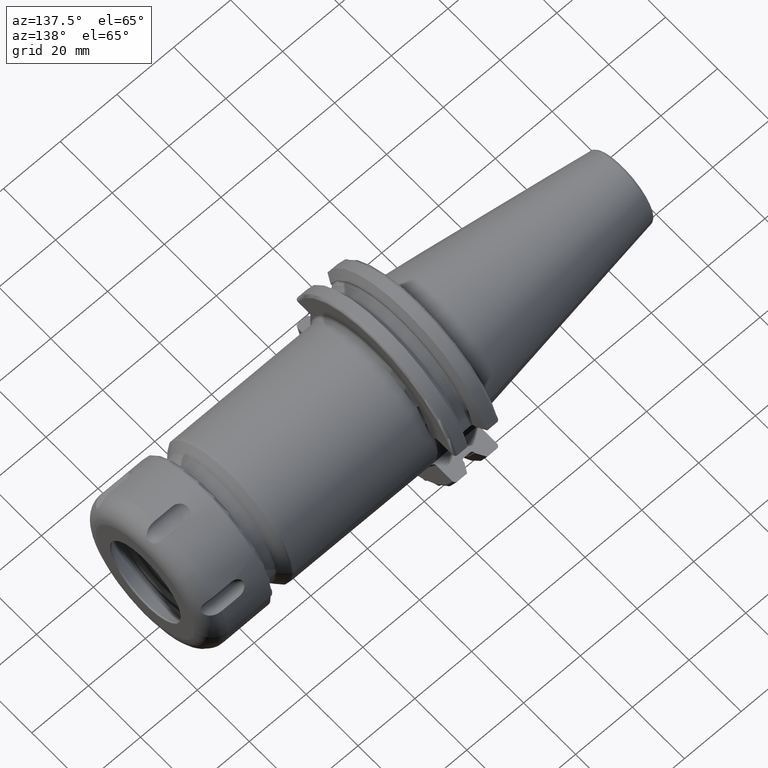
[diagram: clean part render]
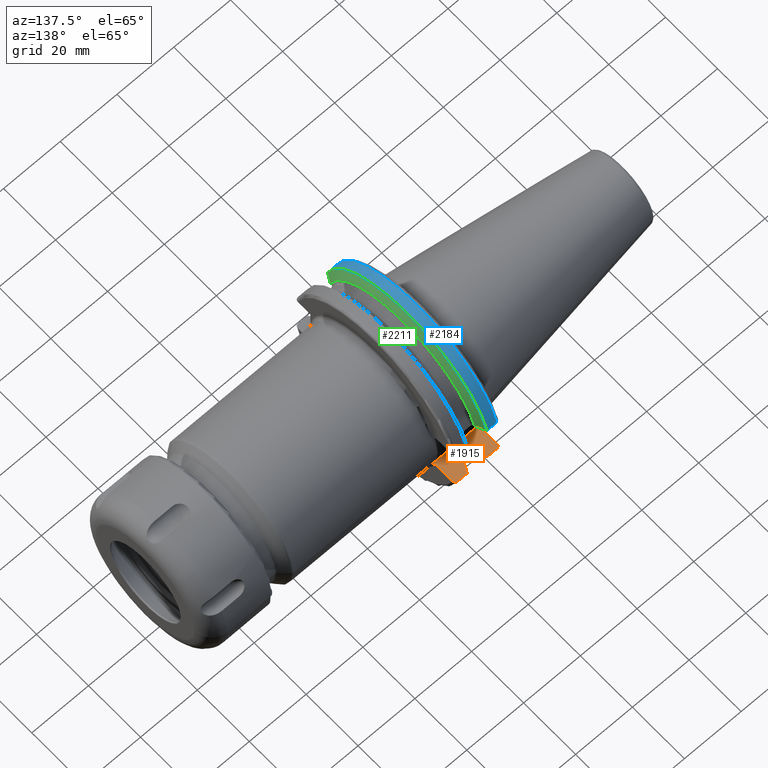
[diagram: same view with three faces highlighted in distinct colors, each labeled with its STEP entity id]
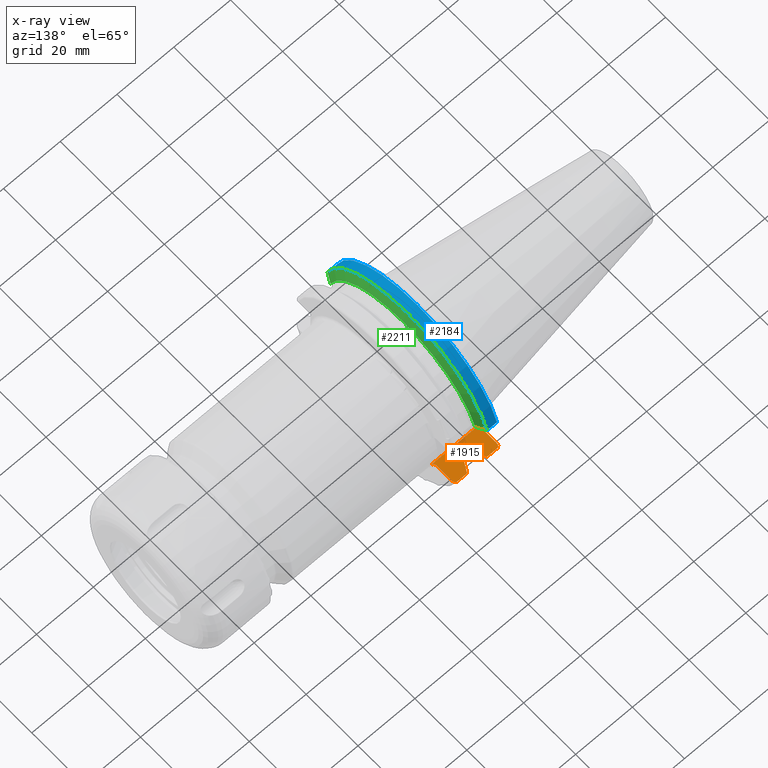
[diagram: x-ray of the same camera — body ghosted, the three highlighted faces saturated]
A machine part, auxiliary view with three faces highlighted in distinct colors.
The next image is the same camera in x-ray (body ghosted, the three faces saturated) — at least one of them is partly hidden behind the body in this view.
Their STEP definitions:

[orange] entity #1915 — the highlighted planar face has unit normal (0, 0, -1).
#177=DIRECTION('',(-1.E0,0.E0,0.E0));
#178=VECTOR('',#177,1.E0);
#179=CARTESIAN_POINT('',(2.005E1,2.259181267628E1,-8.1E0));
#180=LINE('',#179,#178);
#190=DIRECTION('',(0.E0,1.E0,0.E0));
#191=VECTOR('',#190,4.181267627721E-2);
#192=CARTESIAN_POINT('',(1.905E1,2.255E1,-8.1E0));
#193=LINE('',#192,#191);
#194=DIRECTION('',(-1.E0,0.E0,0.E0));
#195=VECTOR('',#194,1.585E1);
#196=CARTESIAN_POINT('',(1.905E1,2.255E1,-8.1E0));
#197=LINE('',#196,#195);
#203=DIRECTION('',(0.E0,-1.E0,0.E0));
#204=VECTOR('',#203,6.025523739021E0);
#205=CARTESIAN_POINT('',(1.905E1,2.967695075728E1,-8.1E0));
#206=LINE('',#205,#204);
#240=CARTESIAN_POINT('',(2.005E1,2.259181267628E1,-8.1E0));
#241=CARTESIAN_POINT('',(1.996471559679E1,2.259181267628E1,-8.1E0));
#242=CARTESIAN_POINT('',(1.979872990014E1,2.261366886611E1,-8.1E0));
#243=CARTESIAN_POINT('',(1.954992991274E1,2.271974591536E1,-8.1E0));
#244=CARTESIAN_POINT('',(1.934199978608E1,2.288730200111E1,-8.1E0));
#245=CARTESIAN_POINT('',(1.917951445041E1,2.310525621382E1,-8.1E0));
#246=CARTESIAN_POINT('',(1.907329022132E1,2.337183787163E1,-8.1E0));
#247=CARTESIAN_POINT('',(1.905E1,2.355574199375E1,-8.1E0));
#248=CARTESIAN_POINT('',(1.905E1,2.365142701826E1,-8.1E0));
#284=DIRECTION('',(0.E0,-1.E0,1.604290981016E-14));
#285=VECTOR('',#284,2.214507044446E-1);
#286=CARTESIAN_POINT('',(9.2625E0,2.780681820245E1,-8.1E0));
#287=LINE('',#286,#285);
#390=DIRECTION('',(0.E0,-1.E0,1.604290981016E-14));
#391=VECTOR('',#390,2.214507044446E-1);
#392=CARTESIAN_POINT('',(1.30875E1,2.780681820245E1,-8.1E0));
#393=LINE('',#392,#391);
#524=DIRECTION('',(0.E0,-1.E0,0.E0));
#525=VECTOR('',#524,7.126950757280E0);
#526=CARTESIAN_POINT('',(3.2E0,2.967695075728E1,-8.1E0));
#527=LINE('',#526,#525);
#580=CARTESIAN_POINT('',(1.805E1,3.071231684927E1,-8.1E0));
#581=CARTESIAN_POINT('',(1.812702529647E1,3.071231684927E1,-8.1E0));
#582=CARTESIAN_POINT('',(1.827656518037E1,3.069444719907E1,-8.1E0));
#583=CARTESIAN_POINT('',(1.849273698584E1,3.061544862934E1,-8.1E0));
#584=CARTESIAN_POINT('',(1.868460186607E1,3.048863686818E1,-8.1E0));
#585=CARTESIAN_POINT('',(1.884263679922E1,3.032251203229E1,-8.1E0));
#586=CARTESIAN_POINT('',(1.896052984725E1,3.012566774399E1,-8.1E0));
#587=CARTESIAN_POINT('',(1.903334281973E1,2.990707436768E1,-8.1E0));
#588=CARTESIAN_POINT('',(1.905E1,2.975515277820E1,-8.1E0));
#589=CARTESIAN_POINT('',(1.905E1,2.967695075728E1,-8.1E0));
#634=DIRECTION('',(1.E0,0.E0,0.E0));
#635=VECTOR('',#634,3.445946479578E0);
#636=CARTESIAN_POINT('',(4.2E0,3.071231684927E1,-8.1E0));
#637=LINE('',#636,#635);
#647=DIRECTION('',(1.E0,0.E0,0.E0));
#648=VECTOR('',#647,3.345946479578E0);
#649=CARTESIAN_POINT('',(1.470405352042E1,3.071231684927E1,-8.1E0));
#650=LINE('',#649,#648);
#696=CARTESIAN_POINT('',(3.2E0,2.967695075728E1,-8.1E0));
#697=CARTESIAN_POINT('',(3.2E0,2.975535829664E1,-8.1E0));
#698=CARTESIAN_POINT('',(3.216736704136E0,2.990767511790E1,-8.1E0));
#699=CARTESIAN_POINT('',(3.290003023403E0,3.012696803037E1,-8.1E0));
#700=CARTESIAN_POINT('',(3.408578685874E0,3.032415560769E1,-8.1E0));
#701=CARTESIAN_POINT('',(3.566974678455E0,3.048991705446E1,-8.1E0));
#702=CARTESIAN_POINT('',(3.758498450120E0,3.061600082070E1,-8.1E0));
#703=CARTESIAN_POINT('',(3.973995795704E0,3.069452712052E1,-8.1E0));
#704=CARTESIAN_POINT('',(4.123165215148E0,3.071231684927E1,-8.1E0));
#705=CARTESIAN_POINT('',(4.2E0,3.071231684927E1,-8.1E0));
#750=CARTESIAN_POINT('',(9.2625E0,2.780681820245E1,-8.1E0));
#751=CARTESIAN_POINT('',(9.089138247115E0,2.811956968242E1,-8.1E0));
#752=CARTESIAN_POINT('',(8.738235514848E0,2.875178670793E1,-8.1E0));
#753=CARTESIAN_POINT('',(8.199445066245E0,2.972014324708E1,-8.1E0));
#754=CARTESIAN_POINT('',(7.831837395590E0,3.037933474515E1,-8.1E0));
#755=CARTESIAN_POINT('',(7.645946479578E0,3.071231684927E1,-8.1E0));
#778=CARTESIAN_POINT('',(1.30875E1,2.780681820245E1,-8.1E0));
#779=CARTESIAN_POINT('',(1.326086175289E1,2.811956968242E1,-8.1E0));
#780=CARTESIAN_POINT('',(1.361176448515E1,2.875178670793E1,-8.1E0));
#781=CARTESIAN_POINT('',(1.415055493375E1,2.972014324708E1,-8.1E0));
#782=CARTESIAN_POINT('',(1.451816260441E1,3.037933474515E1,-8.1E0));
#783=CARTESIAN_POINT('',(1.470405352042E1,3.071231684927E1,-8.1E0));
#816=CARTESIAN_POINT('',(1.23375E1,2.680279836137E1,-8.1E0));
#817=CARTESIAN_POINT('',(1.239562674305E1,2.680279836137E1,-8.1E0));
#818=CARTESIAN_POINT('',(1.250833850947E1,2.681647967473E1,-8.1E0));
#819=CARTESIAN_POINT('',(1.267115939476E1,2.687697033942E1,-8.1E0));
#820=CARTESIAN_POINT('',(1.281461158638E1,2.697320741180E1,-8.1E0));
#821=CARTESIAN_POINT('',(1.293266629249E1,2.709885742794E1,-8.1E0));
#822=CARTESIAN_POINT('',(1.302055059705E1,2.724712798877E1,-8.1E0));
#823=CARTESIAN_POINT('',(1.307501358899E1,2.741187526171E1,-8.1E0));
#824=CARTESIAN_POINT('',(1.30875E1,2.752640409084E1,-8.1E0));
#825=CARTESIAN_POINT('',(1.30875E1,2.758536749801E1,-8.1E0));
#870=DIRECTION('',(1.E0,0.E0,0.E0));
#871=VECTOR('',#870,2.325E0);
#872=CARTESIAN_POINT('',(1.00125E1,2.680279836137E1,-8.1E0));
#873=LINE('',#872,#871);
#896=CARTESIAN_POINT('',(9.2625E0,2.758536749801E1,-8.1E0));
#897=CARTESIAN_POINT('',(9.2625E0,2.752618761985E1,-8.1E0));
#898=CARTESIAN_POINT('',(9.275065021869E0,2.741125245771E1,-8.1E0));
#899=CARTESIAN_POINT('',(9.330017296387E0,2.724574966430E1,-8.1E0));
#900=CARTESIAN_POINT('',(9.418514302459E0,2.709725570567E1,-8.1E0));
#901=CARTESIAN_POINT('',(9.536940885437E0,2.697190991915E1,-8.1E0));
#902=CARTESIAN_POINT('',(9.680259770071E0,2.687630945530E1,-8.1E0));
#903=CARTESIAN_POINT('',(9.842325690080E0,2.681638482234E1,-8.1E0));
#904=CARTESIAN_POINT('',(9.954609318184E0,2.680279836137E1,-8.1E0));
#905=CARTESIAN_POINT('',(1.00125E1,2.680279836137E1,-8.1E0));
#1387=CARTESIAN_POINT('',(9.2625E0,2.780681820245E1,-8.1E0));
#1388=CARTESIAN_POINT('',(9.2625E0,2.758536749801E1,-8.1E0));
#1389=VERTEX_POINT('',#1387);
#1390=VERTEX_POINT('',#1388);
#1417=CARTESIAN_POINT('',(1.30875E1,2.780681820245E1,-8.1E0));
#1418=CARTESIAN_POINT('',(1.30875E1,2.758536749801E1,-8.1E0));
#1419=VERTEX_POINT('',#1417);
#1420=VERTEX_POINT('',#1418);
#1439=VERTEX_POINT('',#905);
#1441=CARTESIAN_POINT('',(1.23375E1,2.680279836137E1,-8.1E0));
#1442=VERTEX_POINT('',#1441);
#1445=VERTEX_POINT('',#783);
#1447=VERTEX_POINT('',#755);
#1472=CARTESIAN_POINT('',(3.2E0,2.255E1,-8.1E0));
#1474=VERTEX_POINT('',#1472);
#1475=CARTESIAN_POINT('',(3.2E0,2.967695075728E1,-8.1E0));
#1476=VERTEX_POINT('',#1475);
#1485=CARTESIAN_POINT('',(4.2E0,3.071231684927E1,-8.1E0));
#1486=VERTEX_POINT('',#1485);
#1487=CARTESIAN_POINT('',(1.805E1,3.071231684927E1,-8.1E0));
#1488=VERTEX_POINT('',#1487);
#1495=VERTEX_POINT('',#589);
#1525=CARTESIAN_POINT('',(1.905E1,2.365142701826E1,-8.1E0));
#1527=VERTEX_POINT('',#1525);
#1529=CARTESIAN_POINT('',(2.005E1,2.259181267628E1,-8.1E0));
#1531=VERTEX_POINT('',#1529);
#1556=CARTESIAN_POINT('',(1.905E1,2.255E1,-8.1E0));
#1558=VERTEX_POINT('',#1556);
#1561=CARTESIAN_POINT('',(1.905E1,2.259181267628E1,-8.1E0));
#1562=VERTEX_POINT('',#1561);
#1877=CARTESIAN_POINT('',(1.905E1,2.255E1,-8.1E0));
#1878=DIRECTION('',(0.E0,0.E0,-1.E0));
#1879=DIRECTION('',(0.E0,1.E0,0.E0));
#1880=AXIS2_PLACEMENT_3D('',#1877,#1878,#1879);
#1881=PLANE('',#1880);
#1883=ORIENTED_EDGE('',*,*,#1882,.T.);
#1885=ORIENTED_EDGE('',*,*,#1884,.F.);
#1886=ORIENTED_EDGE('',*,*,#1869,.T.);
#1887=ORIENTED_EDGE('',*,*,#1765,.F.);
#1888=ORIENTED_EDGE('',*,*,#1752,.T.);
#1890=ORIENTED_EDGE('',*,*,#1889,.F.);
#1892=ORIENTED_EDGE('',*,*,#1891,.T.);
#1894=ORIENTED_EDGE('',*,*,#1893,.T.);
#1896=ORIENTED_EDGE('',*,*,#1895,.F.);
#1898=ORIENTED_EDGE('',*,*,#1897,.T.);
#1900=ORIENTED_EDGE('',*,*,#1899,.T.);
#1902=ORIENTED_EDGE('',*,*,#1901,.T.);
#1904=ORIENTED_EDGE('',*,*,#1903,.T.);
#1906=ORIENTED_EDGE('',*,*,#1905,.F.);
#1908=ORIENTED_EDGE('',*,*,#1907,.T.);
#1910=ORIENTED_EDGE('',*,*,#1909,.T.);
#1912=ORIENTED_EDGE('',*,*,#1911,.T.);
#1913=EDGE_LOOP('',(#1883,#1885,#1886,#1887,#1888,#1890,#1892,#1894,#1896,#1898,
#1900,#1902,#1904,#1906,#1908,#1910,#1912));
#1914=FACE_OUTER_BOUND('',#1913,.F.);
#1915=ADVANCED_FACE('',(#1914),#1881,.F.);
#249=B_SPLINE_CURVE_WITH_KNOTS('',3,(#240,#241,#242,#243,#244,#245,#246,#247,
#248),.UNSPECIFIED.,.F.,.F.,(4,1,1,1,1,1,4),(0.E0,1.666666666667E-1,
3.333333333333E-1,5.E-1,6.666666666667E-1,8.333333333333E-1,1.E0),
.UNSPECIFIED.);
#590=B_SPLINE_CURVE_WITH_KNOTS('',3,(#580,#581,#582,#583,#584,#585,#586,#587,
#588,#589),.UNSPECIFIED.,.F.,.F.,(4,1,1,1,1,1,1,4),(0.E0,1.428571428571E-1,
2.857142857143E-1,4.285714285714E-1,5.714285714286E-1,7.142857142857E-1,
8.571428571429E-1,1.E0),.UNSPECIFIED.);
#706=B_SPLINE_CURVE_WITH_KNOTS('',3,(#696,#697,#698,#699,#700,#701,#702,#703,
#704,#705),.UNSPECIFIED.,.F.,.F.,(4,1,1,1,1,1,1,4),(0.E0,1.428571428571E-1,
2.857142857143E-1,4.285714285714E-1,5.714285714286E-1,7.142857142857E-1,
8.571428571429E-1,1.E0),.UNSPECIFIED.);
#756=B_SPLINE_CURVE_WITH_KNOTS('',3,(#750,#751,#752,#753,#754,#755),
.UNSPECIFIED.,.F.,.F.,(4,1,1,4),(0.E0,3.333333333333E-1,6.666666666667E-1,1.E0),
.UNSPECIFIED.);
#784=B_SPLINE_CURVE_WITH_KNOTS('',3,(#778,#779,#780,#781,#782,#783),
.UNSPECIFIED.,.F.,.F.,(4,1,1,4),(0.E0,3.333333333333E-1,6.666666666667E-1,1.E0),
.UNSPECIFIED.);
#826=B_SPLINE_CURVE_WITH_KNOTS('',3,(#816,#817,#818,#819,#820,#821,#822,#823,
#824,#825),.UNSPECIFIED.,.F.,.F.,(4,1,1,1,1,1,1,4),(0.E0,1.428571428571E-1,
2.857142857143E-1,4.285714285714E-1,5.714285714286E-1,7.142857142857E-1,
8.571428571429E-1,1.E0),.UNSPECIFIED.);
#906=B_SPLINE_CURVE_WITH_KNOTS('',3,(#896,#897,#898,#899,#900,#901,#902,#903,
#904,#905),.UNSPECIFIED.,.F.,.F.,(4,1,1,1,1,1,1,4),(0.E0,1.428571428571E-1,
2.857142857143E-1,4.285714285714E-1,5.714285714286E-1,7.142857142857E-1,
8.571428571429E-1,1.E0),.UNSPECIFIED.);
#1752=EDGE_CURVE('',#1558,#1474,#197,.T.);
#1765=EDGE_CURVE('',#1558,#1562,#193,.T.);
#1869=EDGE_CURVE('',#1531,#1562,#180,.T.);
#1882=EDGE_CURVE('',#1495,#1527,#206,.T.);
#1884=EDGE_CURVE('',#1531,#1527,#249,.T.);
#1889=EDGE_CURVE('',#1476,#1474,#527,.T.);
#1891=EDGE_CURVE('',#1476,#1486,#706,.T.);
#1893=EDGE_CURVE('',#1486,#1447,#637,.T.);
#1895=EDGE_CURVE('',#1389,#1447,#756,.T.);
#1897=EDGE_CURVE('',#1389,#1390,#287,.T.);
#1899=EDGE_CURVE('',#1390,#1439,#906,.T.);
#1901=EDGE_CURVE('',#1439,#1442,#873,.T.);
#1903=EDGE_CURVE('',#1442,#1420,#826,.T.);
#1905=EDGE_CURVE('',#1419,#1420,#393,.T.);
#1907=EDGE_CURVE('',#1419,#1445,#784,.T.);
#1909=EDGE_CURVE('',#1445,#1488,#650,.T.);
#1911=EDGE_CURVE('',#1488,#1495,#590,.T.);

[blue] entity #2184 — the highlighted cylindrical surface (partial cylindrical patch) has radius 31.7625 mm, axis along (1, 0, 0).
#435=DIRECTION('',(1.E0,0.E0,0.E0));
#436=VECTOR('',#435,3.445946479578E0);
#437=CARTESIAN_POINT('',(4.2E0,3.071231684927E1,8.1E0));
#438=LINE('',#437,#436);
#439=CARTESIAN_POINT('',(7.645946479578E0,0.E0,0.E0));
#440=DIRECTION('',(1.E0,0.E0,0.E0));
#441=DIRECTION('',(0.E0,9.669363825036E-1,2.550177095632E-1));
#442=AXIS2_PLACEMENT_3D('',#439,#440,#441);
#444=DIRECTION('',(1.E0,0.E0,0.E0));
#445=VECTOR('',#444,3.445946479578E0);
#446=CARTESIAN_POINT('',(4.2E0,-3.071231684927E1,8.1E0));
#447=LINE('',#446,#445);
#466=CARTESIAN_POINT('',(7.645946479578E0,3.071231684927E1,8.1E0));
#478=CARTESIAN_POINT('',(7.645946479578E0,-3.071231684927E1,8.1E0));
#977=CARTESIAN_POINT('',(4.2E0,0.E0,0.E0));
#978=DIRECTION('',(1.E0,0.E0,0.E0));
#979=DIRECTION('',(0.E0,9.669363825036E-1,2.550177095632E-1));
#980=AXIS2_PLACEMENT_3D('',#977,#978,#979);
#1437=VERTEX_POINT('',#466);
#1438=VERTEX_POINT('',#478);
#1457=CARTESIAN_POINT('',(4.2E0,3.071231684927E1,8.1E0));
#1458=VERTEX_POINT('',#1457);
#1461=CARTESIAN_POINT('',(4.2E0,-3.071231684927E1,8.1E0));
#1462=VERTEX_POINT('',#1461);
#2170=CARTESIAN_POINT('',(-7.2615E1,0.E0,0.E0));
#2171=DIRECTION('',(1.E0,0.E0,0.E0));
#2172=DIRECTION('',(0.E0,-1.E0,0.E0));
#2173=AXIS2_PLACEMENT_3D('',#2170,#2171,#2172);
#2174=CYLINDRICAL_SURFACE('',#2173,3.17625E1);
#2175=ORIENTED_EDGE('',*,*,#1804,.T.);
#2177=ORIENTED_EDGE('',*,*,#2176,.T.);
#2179=ORIENTED_EDGE('',*,*,#2178,.F.);
#2181=ORIENTED_EDGE('',*,*,#2180,.F.);
#2182=EDGE_LOOP('',(#2175,#2177,#2179,#2181));
#2183=FACE_OUTER_BOUND('',#2182,.F.);
#2184=ADVANCED_FACE('',(#2183),#2174,.T.);
#443=CIRCLE('',#442,3.17625E1);
#981=CIRCLE('',#980,3.17625E1);
#1804=EDGE_CURVE('',#1458,#1437,#438,.T.);
#2176=EDGE_CURVE('',#1437,#1438,#443,.T.);
#2178=EDGE_CURVE('',#1462,#1438,#447,.T.);
#2180=EDGE_CURVE('',#1458,#1462,#981,.T.);

[green] entity #2211 — the highlighted conical surface has half-angle 60 deg.
#279=CARTESIAN_POINT('',(9.2625E0,0.E0,0.E0));
#280=DIRECTION('',(1.E0,0.E0,0.E0));
#281=DIRECTION('',(0.E0,9.600957415706E-1,2.796715341576E-1));
#282=AXIS2_PLACEMENT_3D('',#279,#280,#281);
#439=CARTESIAN_POINT('',(7.645946479578E0,0.E0,0.E0));
#440=DIRECTION('',(1.E0,0.E0,0.E0));
#441=DIRECTION('',(0.E0,9.669363825036E-1,2.550177095632E-1));
#442=AXIS2_PLACEMENT_3D('',#439,#440,#441);
#466=CARTESIAN_POINT('',(7.645946479578E0,3.071231684927E1,8.1E0));
#467=CARTESIAN_POINT('',(7.831754864835E0,3.037948258059E1,8.1E0));
#468=CARTESIAN_POINT('',(8.199252814970E0,2.972048825911E1,8.1E0));
#469=CARTESIAN_POINT('',(8.738047920141E0,2.875212438619E1,8.1E0));
#470=CARTESIAN_POINT('',(9.089058006747E0,2.811971443922E1,8.1E0));
#471=CARTESIAN_POINT('',(9.2625E0,2.780681820245E1,8.1E0));
#473=CARTESIAN_POINT('',(9.2625E0,-2.780681820245E1,8.1E0));
#474=CARTESIAN_POINT('',(9.089138247115E0,-2.811956968242E1,8.1E0));
#475=CARTESIAN_POINT('',(8.738235514848E0,-2.875178670793E1,8.1E0));
#476=CARTESIAN_POINT('',(8.199445066245E0,-2.972014324708E1,8.1E0));
#477=CARTESIAN_POINT('',(7.831837395590E0,-3.037933474515E1,8.1E0));
#478=CARTESIAN_POINT('',(7.645946479578E0,-3.071231684927E1,8.1E0));
#1383=CARTESIAN_POINT('',(9.2625E0,2.780681820245E1,8.1E0));
#1385=VERTEX_POINT('',#1383);
#1395=CARTESIAN_POINT('',(9.2625E0,-2.780681820245E1,8.1E0));
#1397=VERTEX_POINT('',#1395);
#1437=VERTEX_POINT('',#466);
#1438=VERTEX_POINT('',#478);
#2199=CARTESIAN_POINT('',(8.454223239789E0,0.E0,0.E0));
#2200=DIRECTION('',(-1.E0,0.E0,0.E0));
#2201=DIRECTION('',(0.E0,1.E0,0.E0));
#2202=AXIS2_PLACEMENT_3D('',#2199,#2200,#2201);
#2203=CONICAL_SURFACE('',#2202,3.036252358474E1,6.E1);
#2204=ORIENTED_EDGE('',*,*,#1802,.T.);
#2205=ORIENTED_EDGE('',*,*,#2035,.T.);
#2207=ORIENTED_EDGE('',*,*,#2206,.T.);
#2208=ORIENTED_EDGE('',*,*,#2176,.F.);
#2209=EDGE_LOOP('',(#2204,#2205,#2207,#2208));
#2210=FACE_OUTER_BOUND('',#2209,.F.);
#2211=ADVANCED_FACE('',(#2210),#2203,.T.);
#283=CIRCLE('',#282,2.896254716948E1);
#443=CIRCLE('',#442,3.17625E1);
#472=B_SPLINE_CURVE_WITH_KNOTS('',3,(#466,#467,#468,#469,#470,#471),
.UNSPECIFIED.,.F.,.F.,(4,1,1,4),(0.E0,3.333333333333E-1,6.666666666667E-1,1.E0),
.UNSPECIFIED.);
#479=B_SPLINE_CURVE_WITH_KNOTS('',3,(#473,#474,#475,#476,#477,#478),
.UNSPECIFIED.,.F.,.F.,(4,1,1,4),(0.E0,3.333333333333E-1,6.666666666667E-1,1.E0),
.UNSPECIFIED.);
#1802=EDGE_CURVE('',#1437,#1385,#472,.T.);
#2035=EDGE_CURVE('',#1385,#1397,#283,.T.);
#2176=EDGE_CURVE('',#1437,#1438,#443,.T.);
#2206=EDGE_CURVE('',#1397,#1438,#479,.T.);